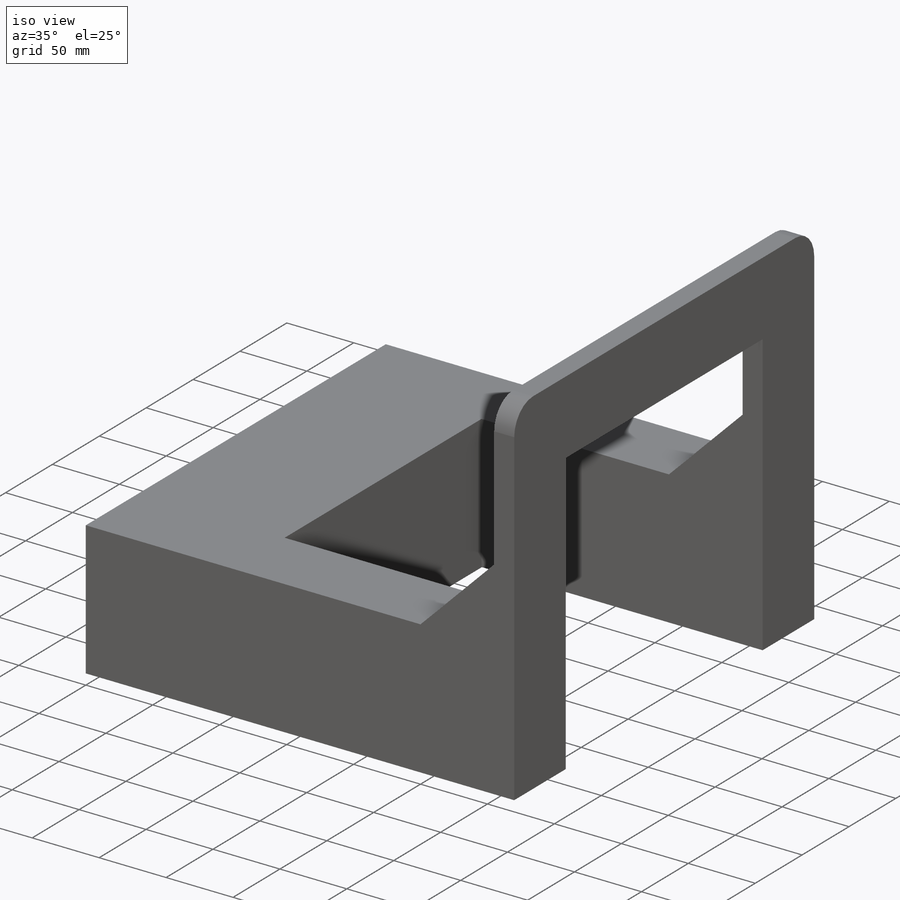
[diagram: iso view]
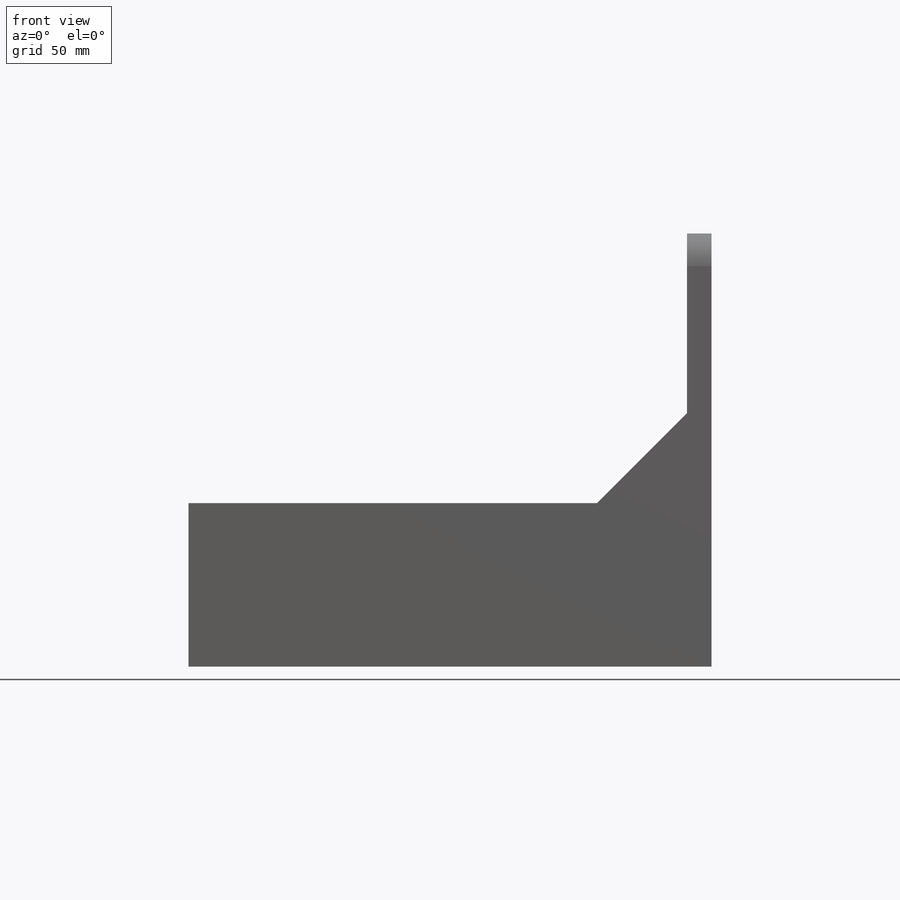
[diagram: front view]
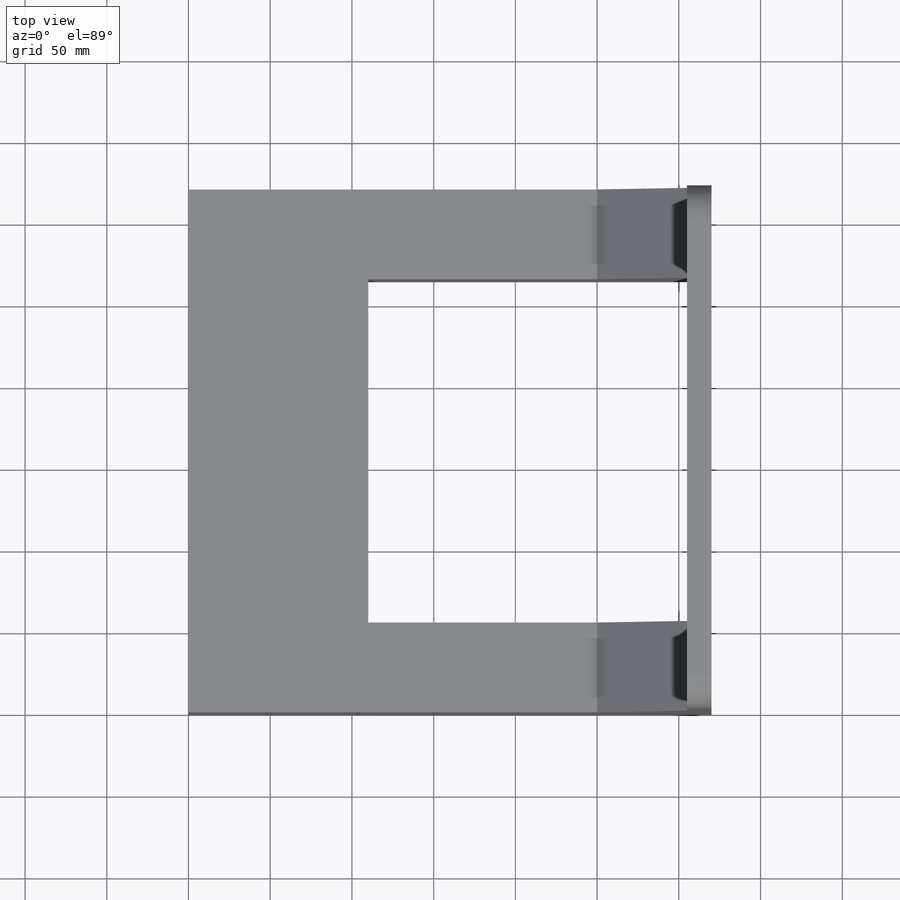
[diagram: top view]
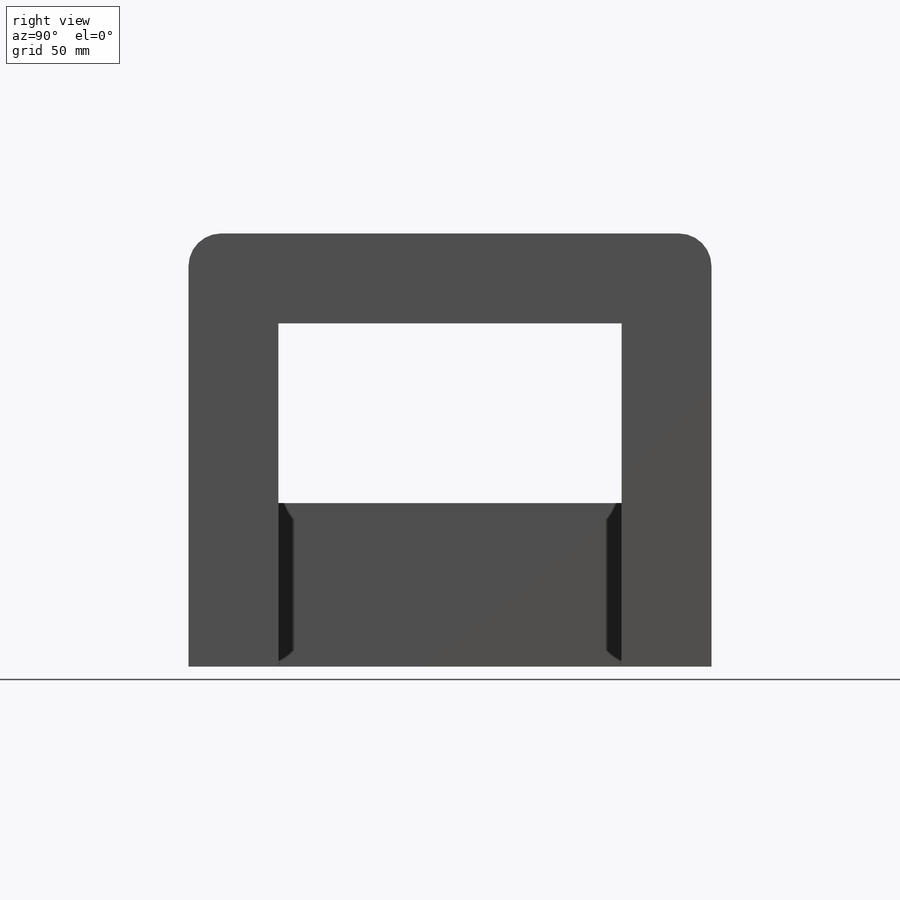
[diagram: right view]
SOLIDWORKS PART (.sldprt)
format: sldprt  version: not decoded by parser v0  size: 189,952 bytes
history: native  units: mm
features: sketch x4, extrude x4, plane x3, material x1, fillet x1 (+8 scaffold rows collapsed)
feature tree (21):
  scaffold x8  (default folders/planes/origin — collapsed)
  material  "材质 <未指定>"
  plane  "前视基准面"
  plane  "上视基准面"
  plane  "右视基准面"
  sketch  "草图1"  dims[D1=320.0mm D2=210.0mm]
  extrude  "凸台-拉伸1"  Depth=100mm
  sketch  "草图2"  dims[D1=210.0mm D2=55.0mm D3=55.0mm]
  extrude  "凸台-拉伸2"  Depth=15mm
  sketch  "草图3"  dims[D1=55.0mm]
  extrude  "凸台-拉伸3"  Depth=55mm
  sketch  "草图4"  dims[D1=55.0mm]
  extrude  "凸台-拉伸4"  Depth=55mm
  fillet  "圆角1"  Radius=20mm
decode coverage: 9 of 9 modeling features carry decoded parameters
note: suppression state not decoded; provenance and decode notes live in map.json
